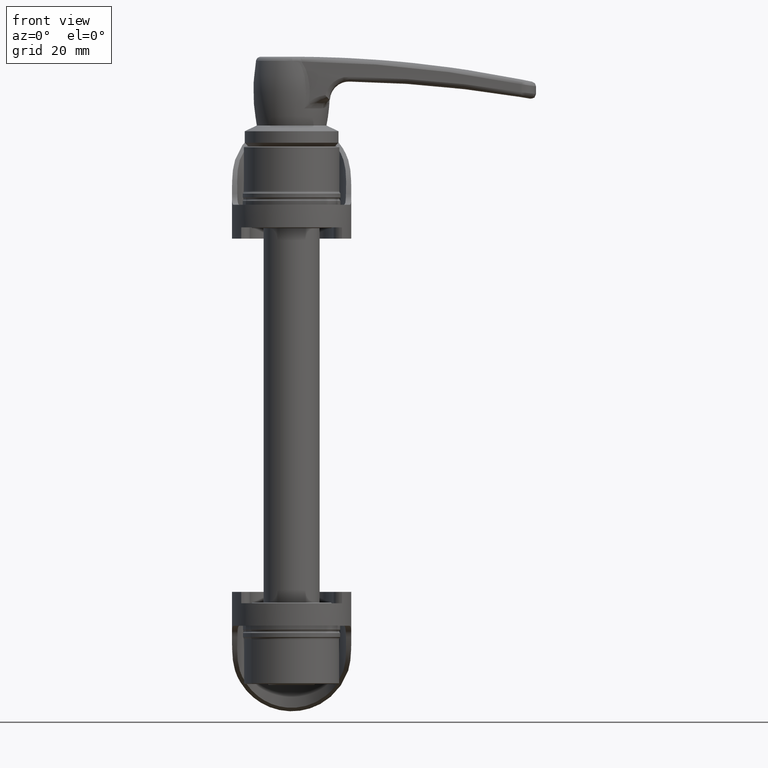
[diagram: clean part render]
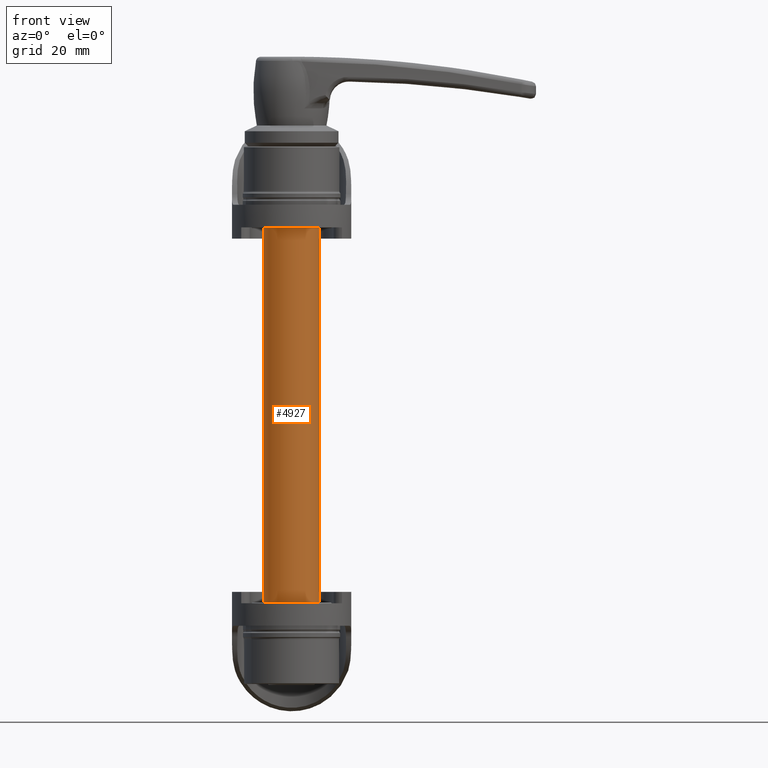
[diagram: same view with one face highlighted and labeled with its STEP entity id]
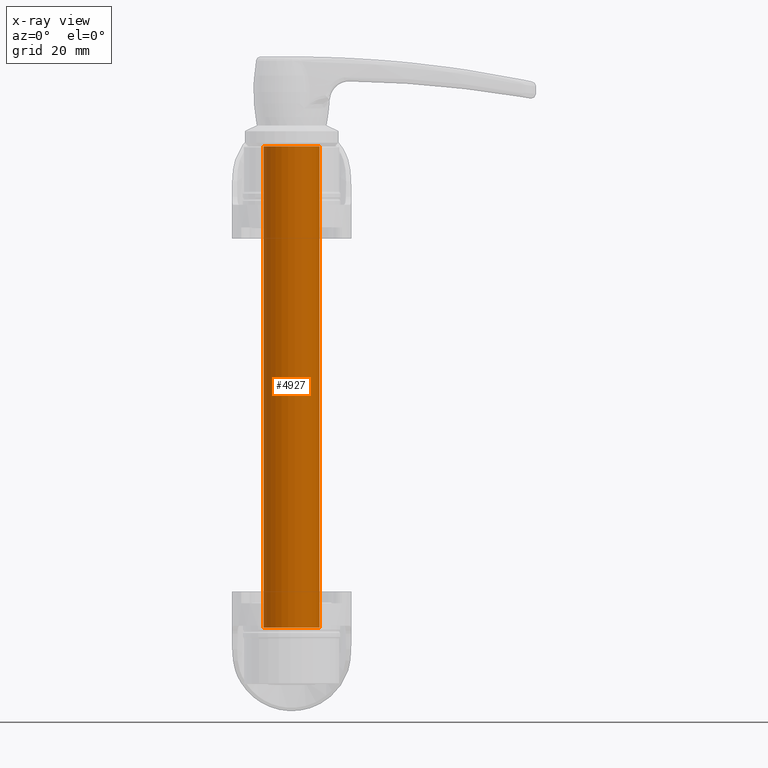
[diagram: x-ray of the same camera — body ghosted, the highlighted face saturated]
A machine part, front view. The second image highlights one B-rep face of the part: STEP entity #4927.
The next image is the same camera in x-ray: the body ghosted, the highlighted face saturated — about 0% of this face is hidden behind the body in this view.
In plain terms, the highlighted cylindrical surface (edge-blend (fillet) strip) has radius 7.4549 mm, axis along (0, -0, 1).
Its self-contained STEP definition (entity closure, byte-faithful):
#170 = AXIS2_PLACEMENT_3D ( 'NONE', #6706, #2793, #7361 ) ;
#270 = AXIS2_PLACEMENT_3D ( 'NONE', #6027, #2136, #6694 ) ;
#338 = CARTESIAN_POINT ( 'NONE',  ( 133.6040000000000100, 1.887592999970209300E-016, -7.454899999999998500 ) ) ;
#387 = DIRECTION ( 'NONE',  ( -1.000000000000000000, 6.008901426488175900E-032, 0.0000000000000000000 ) ) ;
#504 = EDGE_CURVE ( 'NONE', #6790, #5263, #2959, .T. ) ;
#969 = ORIENTED_EDGE ( 'NONE', *, *, #504, .F. ) ;
#1123 = ORIENTED_EDGE ( 'NONE', *, *, #6656, .F. ) ;
#1174 = ORIENTED_EDGE ( 'NONE', *, *, #6985, .T. ) ;
#1673 = ORIENTED_EDGE ( 'NONE', *, *, #3898, .T. ) ;
#1949 = CYLINDRICAL_SURFACE ( 'NONE', #7235, 7.454899999999967400 ) ;
#2136 = DIRECTION ( 'NONE',  ( -1.000000000000000000, 6.008901426488175900E-032, 0.0000000000000000000 ) ) ;
#2362 = CARTESIAN_POINT ( 'NONE',  ( 1.286442316760151300E-030, 1.887592999970243300E-016, -7.454899999999967400 ) ) ;
#2793 = DIRECTION ( 'NONE',  ( -1.000000000000000000, 6.008901426488175900E-032, 0.0000000000000000000 ) ) ;
#2959 = CIRCLE ( 'NONE', #270, 7.454899999999967400 ) ;
#3317 = LINE ( 'NONE', #3460, #5073 ) ;
#3438 = CIRCLE ( 'NONE', #170, 7.454899999999967400 ) ;
#3460 = CARTESIAN_POINT ( 'NONE',  ( -1.286442316760151300E-030, 7.242026422993318600E-016, 7.454899999999967400 ) ) ;
#3471 = EDGE_LOOP ( 'NONE', ( #1123, #1174, #1673, #969 ) ) ;
#3595 = CARTESIAN_POINT ( 'NONE',  ( 0.0000000000000000000, 0.0000000000000000000, 0.0000000000000000000 ) ) ;
#3768 = CARTESIAN_POINT ( 'NONE',  ( 5.587999999999981400, 1.887592999970209300E-016, -7.454899999999998500 ) ) ;
#3890 = CARTESIAN_POINT ( 'NONE',  ( 5.587999999999981400, 7.242026422993338300E-016, 7.454899999999967400 ) ) ;
#3898 = EDGE_CURVE ( 'NONE', #5982, #5263, #3317, .T. ) ;
#3950 = LINE ( 'NONE', #2362, #5484 ) ;
#4508 = CARTESIAN_POINT ( 'NONE',  ( 133.6040000000000100, 7.242026422994132100E-016, 7.454899999999967400 ) ) ;
#4927 = ADVANCED_FACE ( 'NONE', ( #7150 ), #1949, .T. ) ;
#5073 = VECTOR ( 'NONE', #6086, 1000.000000000000000 ) ;
#5263 = VERTEX_POINT ( 'NONE', #3890 ) ;
#5484 = VECTOR ( 'NONE', #6258, 1000.000000000000000 ) ;
#5982 = VERTEX_POINT ( 'NONE', #4508 ) ;
#6027 = CARTESIAN_POINT ( 'NONE',  ( 5.587999999999981400, 1.925929944387235900E-030, 1.848892746611746400E-029 ) ) ;
#6086 = DIRECTION ( 'NONE',  ( -1.000000000000000000, 6.008901426488175900E-032, 0.0000000000000000000 ) ) ;
#6258 = DIRECTION ( 'NONE',  ( -1.000000000000000000, 6.008901426488175900E-032, 0.0000000000000000000 ) ) ;
#6583 = VERTEX_POINT ( 'NONE', #338 ) ;
#6656 = EDGE_CURVE ( 'NONE', #6583, #6790, #3950, .T. ) ;
#6694 = DIRECTION ( 'NONE',  ( 0.0000000000000000000, 9.714451465470160400E-017, 1.000000000000000000 ) ) ;
#6706 = CARTESIAN_POINT ( 'NONE',  ( 133.6040000000000100, 8.127424365314135300E-029, 0.0000000000000000000 ) ) ;
#6790 = VERTEX_POINT ( 'NONE', #3768 ) ;
#6985 = EDGE_CURVE ( 'NONE', #6583, #5982, #3438, .T. ) ;
#7150 = FACE_OUTER_BOUND ( 'NONE', #3471, .T. ) ;
#7235 = AXIS2_PLACEMENT_3D ( 'NONE', #3595, #387, #7507 ) ;
#7361 = DIRECTION ( 'NONE',  ( 0.0000000000000000000, 9.714451465470160400E-017, 1.000000000000000000 ) ) ;
#7507 = DIRECTION ( 'NONE',  ( -1.725633230170970500E-031, 9.714451465470160400E-017, 1.000000000000000000 ) ) ;